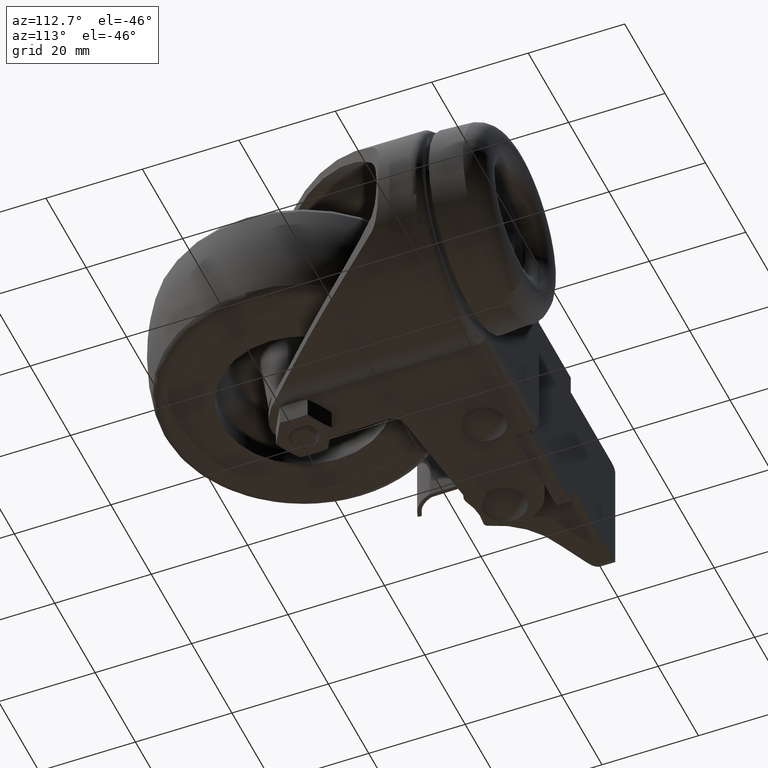
[diagram: clean part render]
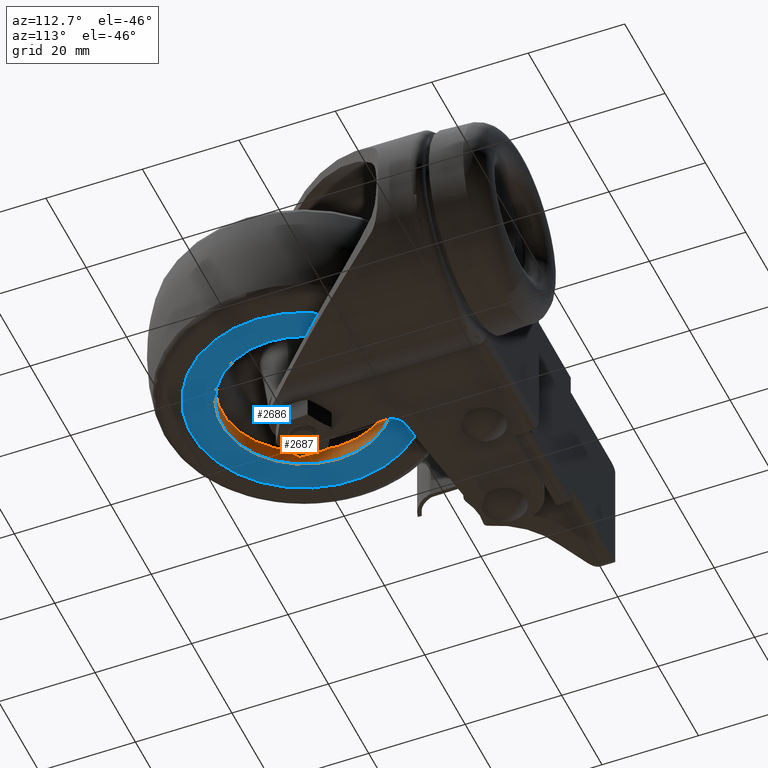
[diagram: same view with the hole feature highlighted: cylindrical wall and planar end face, labeled with their STEP entity ids]
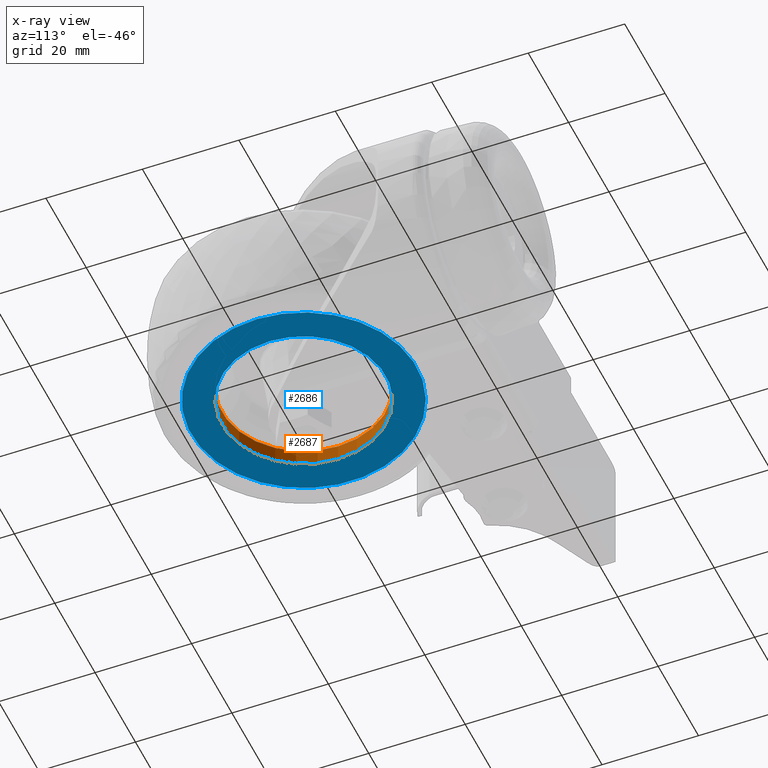
[diagram: x-ray of the same camera — body ghosted, the hole faces saturated]
A machine part, auxiliary view. The highlighted faces form one hole feature of diameter 34.0032 mm: the cylindrical wall (entity #2687, orange) and its adjacent planar end face (entity #2686, blue) — they share a circular edge in the B-rep.
The next image is the same camera in x-ray (body ghosted, the hole faces saturated) — the bore reads through the body.
Wall:
#458=CYLINDRICAL_SURFACE('',#2904,17.0016);
#527=FACE_BOUND('',#823,.T.);
#615=FACE_OUTER_BOUND('',#822,.T.);
#822=EDGE_LOOP('',(#1881));
#823=EDGE_LOOP('',(#1882));
#1074=CIRCLE('',#2903,17.0016);
#1075=CIRCLE('',#2905,17.0016);
#1232=VERTEX_POINT('',#4173);
#1233=VERTEX_POINT('',#4176);
#1493=EDGE_CURVE('',#1232,#1232,#1074,.T.);
#1494=EDGE_CURVE('',#1233,#1233,#1075,.T.);
#1881=ORIENTED_EDGE('',*,*,#1494,.T.);
#1882=ORIENTED_EDGE('',*,*,#1493,.F.);
#2687=ADVANCED_FACE('',(#615,#527),#458,.F.);
#2903=AXIS2_PLACEMENT_3D('',#4174,#3311,#3312);
#2904=AXIS2_PLACEMENT_3D('',#4175,#3313,#3314);
#2905=AXIS2_PLACEMENT_3D('',#4177,#3315,#3316);
#3311=DIRECTION('center_axis',(1.,0.,0.));
#3312=DIRECTION('ref_axis',(0.,0.,-1.));
#3313=DIRECTION('center_axis',(-1.,0.,0.));
#3314=DIRECTION('ref_axis',(0.,0.,-1.));
#3315=DIRECTION('center_axis',(1.,0.,0.));
#3316=DIRECTION('ref_axis',(0.,0.,-1.));
#4173=CARTESIAN_POINT('',(2.,0.,-17.0016));
#4174=CARTESIAN_POINT('Origin',(2.,0.,0.));
#4175=CARTESIAN_POINT('Origin',(28.,0.,0.));
#4176=CARTESIAN_POINT('',(5.52953819385926,0.,-17.0016));
#4177=CARTESIAN_POINT('Origin',(5.52953819385926,0.,0.));
End face:
#526=FACE_BOUND('',#821,.T.);
#614=FACE_OUTER_BOUND('',#820,.T.);
#820=EDGE_LOOP('',(#1879));
#821=EDGE_LOOP('',(#1880));
#1073=CIRCLE('',#2901,23.3515);
#1074=CIRCLE('',#2903,17.0016);
#1231=VERTEX_POINT('',#4170);
#1232=VERTEX_POINT('',#4173);
#1492=EDGE_CURVE('',#1231,#1231,#1073,.T.);
#1493=EDGE_CURVE('',#1232,#1232,#1074,.T.);
#1879=ORIENTED_EDGE('',*,*,#1492,.F.);
#1880=ORIENTED_EDGE('',*,*,#1493,.T.);
#2561=PLANE('',#2902);
#2686=ADVANCED_FACE('',(#614,#526),#2561,.T.);
#2901=AXIS2_PLACEMENT_3D('',#4171,#3307,#3308);
#2902=AXIS2_PLACEMENT_3D('',#4172,#3309,#3310);
#2903=AXIS2_PLACEMENT_3D('',#4174,#3311,#3312);
#3307=DIRECTION('center_axis',(1.,0.,0.));
#3308=DIRECTION('ref_axis',(0.,0.,-1.));
#3309=DIRECTION('center_axis',(-1.,0.,0.));
#3310=DIRECTION('ref_axis',(0.,0.,1.));
#3311=DIRECTION('center_axis',(1.,0.,0.));
#3312=DIRECTION('ref_axis',(0.,0.,-1.));
#4170=CARTESIAN_POINT('',(2.,0.,-23.3515));
#4171=CARTESIAN_POINT('Origin',(2.,0.,0.));
#4172=CARTESIAN_POINT('Origin',(2.,23.3515,0.));
#4173=CARTESIAN_POINT('',(2.,0.,-17.0016));
#4174=CARTESIAN_POINT('Origin',(2.,0.,0.));